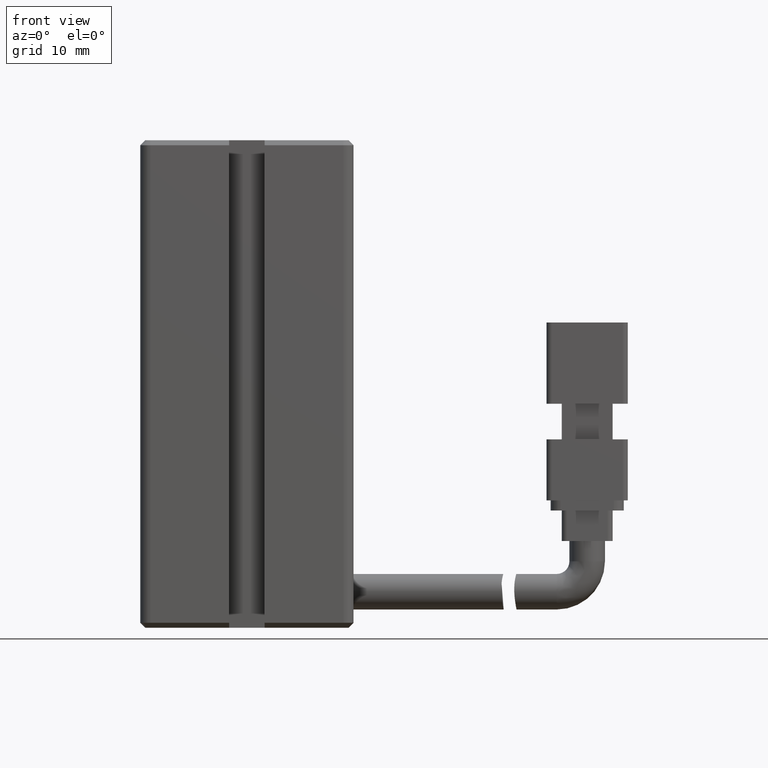
[diagram: clean part render]
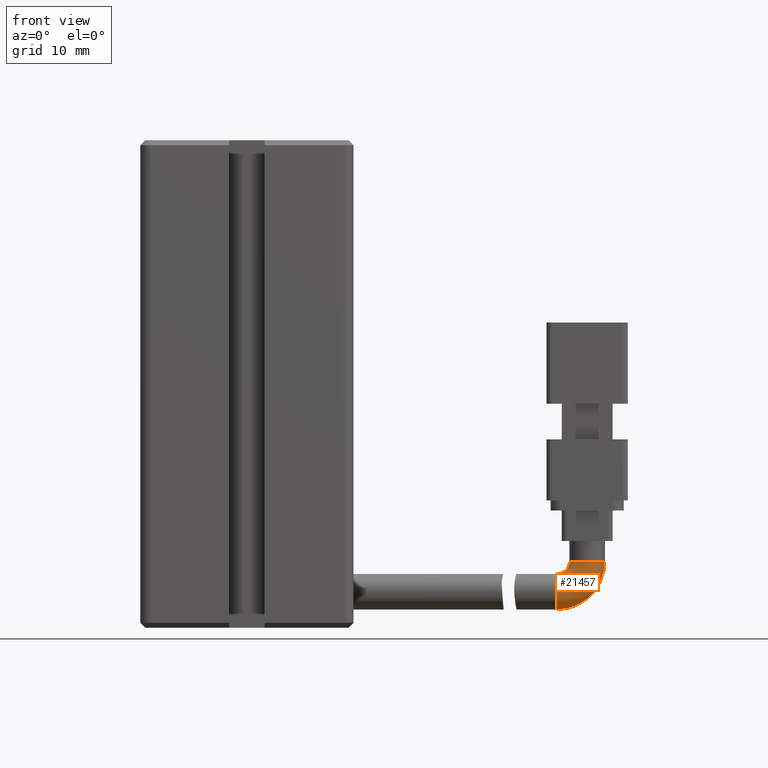
[diagram: same view with one face highlighted and labeled with its STEP entity id]
A machine part, front view. The second image highlights one B-rep face of the part: STEP entity #21457.
In plain terms, the highlighted face is a freeform B-spline surface patch.
Its self-contained STEP definition (entity closure, byte-faithful):
#127 = CARTESIAN_POINT ( 'NONE',  ( 71.42537974683536100, 21.49073232304857600, -135.4500000000000200 ) ) ;
#1346 = CARTESIAN_POINT ( 'NONE',  ( 76.17537974683536100, 21.49073232304859400, -132.4500000000000200 ) ) ;
#3434 = ORIENTED_EDGE ( 'NONE', *, *, #30150, .T. ) ;
#4252 = CIRCLE ( 'NONE', #6212, 1.750000000000001600 ) ;
#4271 = CIRCLE ( 'NONE', #36147, 1.750000000000001600 ) ;
#4489 = CARTESIAN_POINT ( 'NONE',  ( 76.17537974683536100, 21.49073232304859400, -135.2324855787277900 ) ) ;
#5015 = CARTESIAN_POINT ( 'NONE',  ( 71.42537974683534700, 17.99073232304857600, -137.1999999999999900 ) ) ;
#5035 =( BOUNDED_SURFACE ( )  B_SPLINE_SURFACE ( 3, 3, ( 
 ( #1346, #4489, #31580, #5148 ),
 ( #14242, #14120, #5278, #5015 ),
 ( #26072, #35355, #38043, #23430 ),
 ( #26208, #19895, #26329, #35106 ) ),
 .UNSPECIFIED., .F., .F., .F. ) 
 B_SPLINE_SURFACE_WITH_KNOTS ( ( 4, 4 ),
 ( 4, 4 ),
 ( 0.0000000000000000000, 1.000000000000000000 ),
 ( 0.0000000000000000000, 1.000000000000000000 ),
 .UNSPECIFIED. ) 
 GEOMETRIC_REPRESENTATION_ITEM ( )  RATIONAL_B_SPLINE_SURFACE ( (
 ( 1.000000000000000000, 0.8047378541243649400, 0.8047378541243649400, 1.000000000000000000),
 ( 0.3333333333333332000, 0.2682459513747881800, 0.2682459513747881800, 0.3333333333333332000),
 ( 0.3333333333333332000, 0.2682459513747881800, 0.2682459513747881800, 0.3333333333333332000),
 ( 1.000000000000000000, 0.8047378541243649400, 0.8047378541243649400, 1.000000000000000000) ) ) 
 REPRESENTATION_ITEM ( '' )  SURFACE ( )  );
#5148 = CARTESIAN_POINT ( 'NONE',  ( 71.42537974683536100, 21.49073232304857600, -137.1999999999999900 ) ) ;
#5278 = CARTESIAN_POINT ( 'NONE',  ( 74.20786532556314800, 17.99073232304857600, -137.1999999999999600 ) ) ;
#5367 = CARTESIAN_POINT ( 'NONE',  ( 76.17537974683536100, 21.49073232304859400, -132.4500000000000200 ) ) ;
#6212 = AXIS2_PLACEMENT_3D ( 'NONE', #127, #20973, #27377 ) ;
#7710 = CIRCLE ( 'NONE', #11210, 4.750000000000004400 ) ;
#11107 = CARTESIAN_POINT ( 'NONE',  ( 74.42537974683536100, 21.49073232304858600, -132.4500000000000200 ) ) ;
#11210 = AXIS2_PLACEMENT_3D ( 'NONE', #17390, #20402, #38429 ) ;
#12860 = CARTESIAN_POINT ( 'NONE',  ( 71.42537974683536100, 21.49073232304857600, -132.4500000000000200 ) ) ;
#14120 = CARTESIAN_POINT ( 'NONE',  ( 76.17537974683537500, 17.99073232304859000, -135.2324855787277900 ) ) ;
#14242 = CARTESIAN_POINT ( 'NONE',  ( 76.17537974683537500, 17.99073232304859000, -132.4500000000000200 ) ) ;
#14589 = EDGE_LOOP ( 'NONE', ( #27912, #20988, #3434, #33412 ) ) ;
#15228 = VERTEX_POINT ( 'NONE', #5367 ) ;
#15547 = CARTESIAN_POINT ( 'NONE',  ( 71.42537974683536100, 21.49073232304856900, -137.2000000000000200 ) ) ;
#16185 = VERTEX_POINT ( 'NONE', #15547 ) ;
#17143 = DIRECTION ( 'NONE',  ( 2.143131898507857500E-016, 5.551115123125850500E-017, 1.000000000000000000 ) ) ;
#17390 = CARTESIAN_POINT ( 'NONE',  ( 71.42537974683536100, 21.49073232304857600, -132.4500000000000200 ) ) ;
#19895 = CARTESIAN_POINT ( 'NONE',  ( 72.67537974683536100, 21.49073232304858300, -133.1822330470336300 ) ) ;
#20402 = DIRECTION ( 'NONE',  ( -3.304235192336770000E-015, 1.000000000000000000, -5.551115123125780200E-017 ) ) ;
#20973 = DIRECTION ( 'NONE',  ( 1.000000000000000000, 3.304235192336770000E-015, 8.579261317967046800E-031 ) ) ;
#20988 = ORIENTED_EDGE ( 'NONE', *, *, #23975, .T. ) ;
#21457 = ADVANCED_FACE ( 'NONE', ( #36586 ), #5035, .T. ) ;
#21484 = EDGE_CURVE ( 'NONE', #22805, #15228, #4271, .T. ) ;
#21874 = VERTEX_POINT ( 'NONE', #22369 ) ;
#22369 = CARTESIAN_POINT ( 'NONE',  ( 71.42537974683536100, 21.49073232304856900, -133.7000000000000200 ) ) ;
#22805 = VERTEX_POINT ( 'NONE', #24895 ) ;
#23430 = CARTESIAN_POINT ( 'NONE',  ( 71.42537974683534700, 17.99073232304857600, -133.6999999999999900 ) ) ;
#23975 = EDGE_CURVE ( 'NONE', #22805, #21874, #28215, .T. ) ;
#24895 = CARTESIAN_POINT ( 'NONE',  ( 72.67537974683536100, 21.49073232304857900, -132.4500000000000200 ) ) ;
#24932 = DIRECTION ( 'NONE',  ( 0.0000000000000000000, 0.0000000000000000000, -1.000000000000000000 ) ) ;
#26072 = CARTESIAN_POINT ( 'NONE',  ( 72.67537974683537500, 17.99073232304857600, -132.4500000000000200 ) ) ;
#26208 = CARTESIAN_POINT ( 'NONE',  ( 72.67537974683536100, 21.49073232304857900, -132.4500000000000200 ) ) ;
#26329 = CARTESIAN_POINT ( 'NONE',  ( 72.15761279386896400, 21.49073232304858300, -133.6999999999999900 ) ) ;
#27377 = DIRECTION ( 'NONE',  ( 0.0000000000000000000, 3.965082230804126700E-015, -1.000000000000000000 ) ) ;
#27912 = ORIENTED_EDGE ( 'NONE', *, *, #21484, .F. ) ;
#28215 = CIRCLE ( 'NONE', #29279, 1.250000000000001100 ) ;
#29279 = AXIS2_PLACEMENT_3D ( 'NONE', #12860, #33831, #24932 ) ;
#30150 = EDGE_CURVE ( 'NONE', #21874, #16185, #4252, .T. ) ;
#30611 = EDGE_CURVE ( 'NONE', #15228, #16185, #7710, .T. ) ;
#31580 = CARTESIAN_POINT ( 'NONE',  ( 74.20786532556314800, 21.49073232304858600, -137.1999999999999900 ) ) ;
#33412 = ORIENTED_EDGE ( 'NONE', *, *, #30611, .F. ) ;
#33831 = DIRECTION ( 'NONE',  ( -3.304235192336770000E-015, 1.000000000000000000, -5.551115123125780200E-017 ) ) ;
#34980 = DIRECTION ( 'NONE',  ( 1.000000000000000000, 3.965082230804126700E-015, 0.0000000000000000000 ) ) ;
#35106 = CARTESIAN_POINT ( 'NONE',  ( 71.42537974683536100, 21.49073232304857600, -133.6999999999999900 ) ) ;
#35355 = CARTESIAN_POINT ( 'NONE',  ( 72.67537974683536100, 17.99073232304857200, -133.1822330470336100 ) ) ;
#36147 = AXIS2_PLACEMENT_3D ( 'NONE', #11107, #17143, #34980 ) ;
#36586 = FACE_OUTER_BOUND ( 'NONE', #14589, .T. ) ;
#38043 = CARTESIAN_POINT ( 'NONE',  ( 72.15761279386896400, 17.99073232304857200, -133.6999999999999600 ) ) ;
#38429 = DIRECTION ( 'NONE',  ( 0.0000000000000000000, 0.0000000000000000000, -1.000000000000000000 ) ) ;